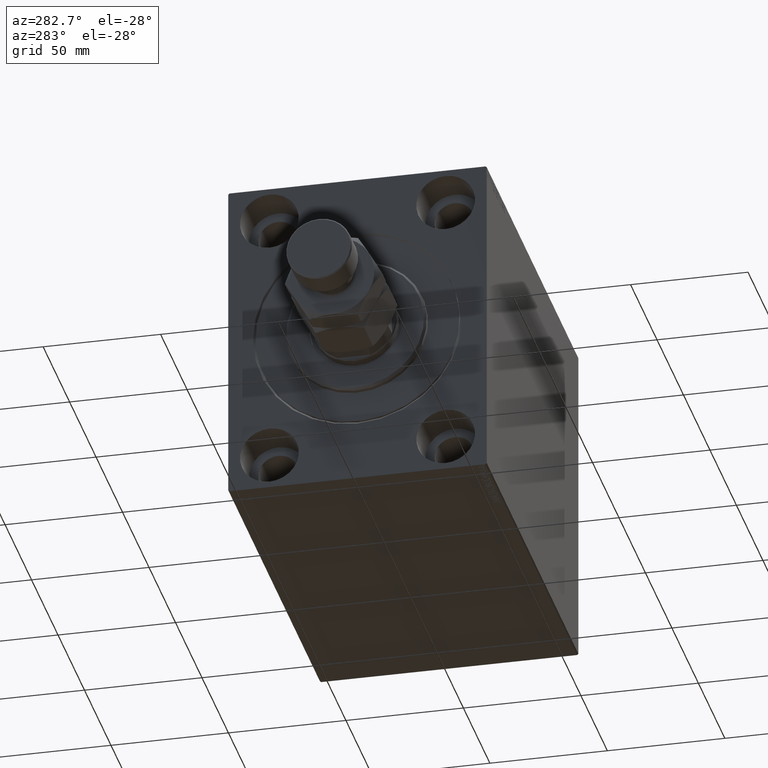
[diagram: clean part render]
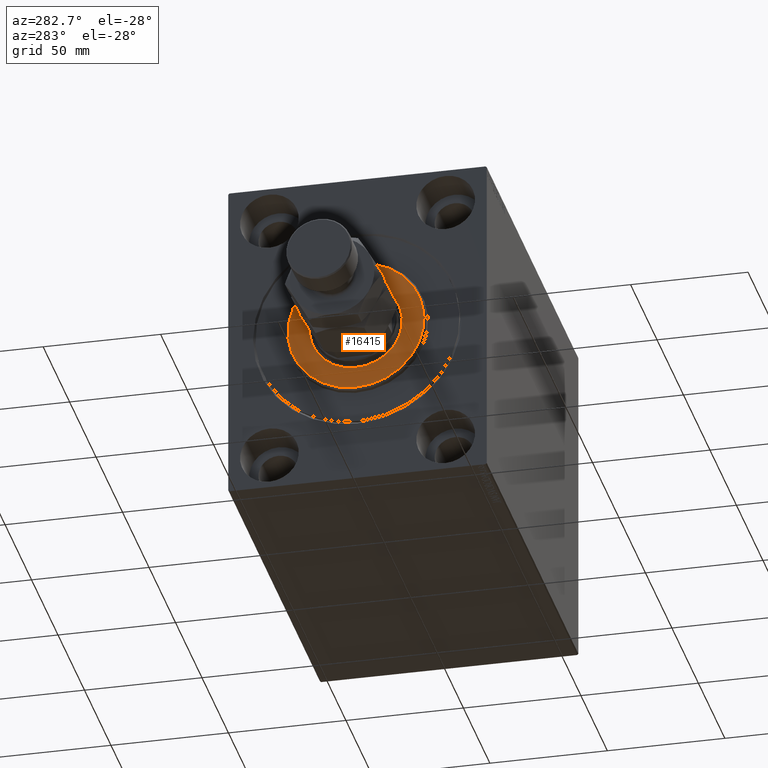
[diagram: same view with one face highlighted and labeled with its STEP entity id]
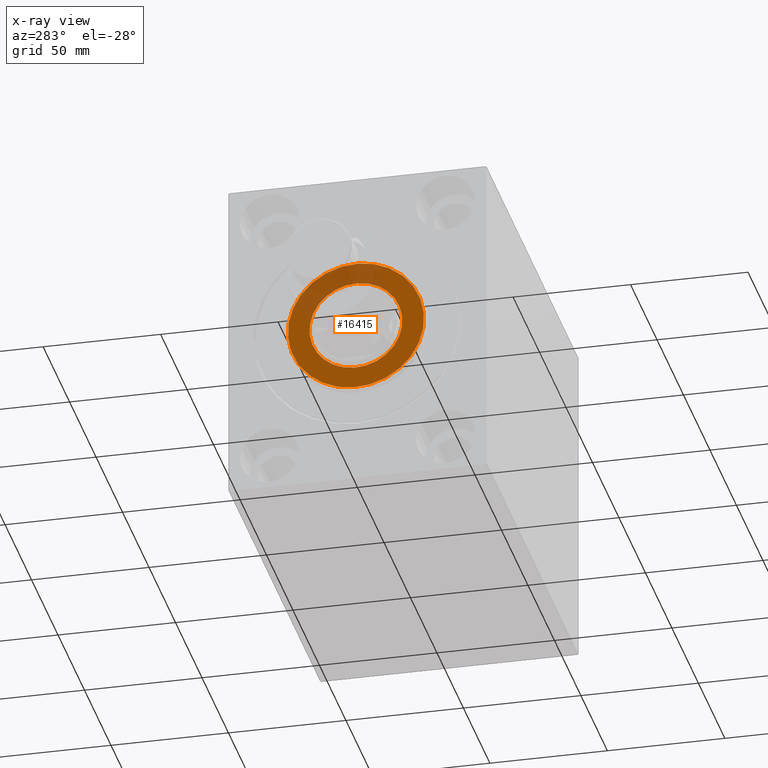
[diagram: x-ray of the same camera — body ghosted, the highlighted face saturated]
A machine part, auxiliary view. The second image highlights one B-rep face of the part: STEP entity #16415.
The next image is the same camera in x-ray: the body ghosted, the highlighted face saturated — about 28% of this face is hidden behind the body in this view.
In plain terms, the highlighted planar face has unit normal (-1, 0, 0).
Its self-contained STEP definition (entity closure, byte-faithful):
#310 = CARTESIAN_POINT ( 'NONE',  ( 3.000000000000000000, 3.612708057484691604E-15, -28.99999999999999289 ) ) ;
#545 = FACE_BOUND ( 'NONE', #963, .T. ) ;
#963 = EDGE_LOOP ( 'NONE', ( #29029, #23702 ) ) ;
#3753 = PLANE ( 'NONE',  #19979 ) ;
#4344 = CARTESIAN_POINT ( 'NONE',  ( 3.000000000000000000, 0.000000000000000000, 0.000000000000000000 ) ) ;
#4706 = ORIENTED_EDGE ( 'NONE', *, *, #39872, .T. ) ;
#6345 = AXIS2_PLACEMENT_3D ( 'NONE', #4344, #43029, #18157 ) ;
#8581 = CARTESIAN_POINT ( 'NONE',  ( 3.000000000000000000, 2.418677428316022331E-15, -19.75000000000000000 ) ) ;
#11640 = CARTESIAN_POINT ( 'NONE',  ( 3.000000000000000000, 0.000000000000000000, 19.75000000000000000 ) ) ;
#11980 = DIRECTION ( 'NONE',  ( 0.000000000000000000, 0.000000000000000000, -1.000000000000000000 ) ) ;
#12781 = AXIS2_PLACEMENT_3D ( 'NONE', #43959, #44180, #29902 ) ;
#13280 = EDGE_LOOP ( 'NONE', ( #4706, #19076 ) ) ;
#13443 = CIRCLE ( 'NONE', #37064, 19.75000000000000000 ) ;
#13582 = CARTESIAN_POINT ( 'NONE',  ( 3.000000000000000000, 0.000000000000000000, 0.000000000000000000 ) ) ;
#14354 = DIRECTION ( 'NONE',  ( 1.000000000000000000, -0.000000000000000000, 0.000000000000000000 ) ) ;
#14586 = CARTESIAN_POINT ( 'NONE',  ( 3.000000000000000000, 0.000000000000000000, 0.000000000000000000 ) ) ;
#16199 = VERTEX_POINT ( 'NONE', #11640 ) ;
#16415 = ADVANCED_FACE ( 'NONE', ( #35289, #545 ), #3753, .T. ) ;
#16955 = CARTESIAN_POINT ( 'NONE',  ( 3.000000000000000000, 0.000000000000000000, 28.99999999999999289 ) ) ;
#18157 = DIRECTION ( 'NONE',  ( 0.000000000000000000, 0.000000000000000000, -1.000000000000000000 ) ) ;
#19076 = ORIENTED_EDGE ( 'NONE', *, *, #27049, .T. ) ;
#19979 = AXIS2_PLACEMENT_3D ( 'NONE', #14586, #14354, #28392 ) ;
#23702 = ORIENTED_EDGE ( 'NONE', *, *, #32468, .T. ) ;
#23750 = EDGE_CURVE ( 'NONE', #16199, #28034, #13443, .T. ) ;
#27049 = EDGE_CURVE ( 'NONE', #30329, #36361, #43650, .T. ) ;
#27625 = DIRECTION ( 'NONE',  ( -1.000000000000000000, 0.000000000000000000, -0.000000000000000000 ) ) ;
#28034 = VERTEX_POINT ( 'NONE', #8581 ) ;
#28392 = DIRECTION ( 'NONE',  ( 0.000000000000000000, 0.000000000000000000, -1.000000000000000000 ) ) ;
#29029 = ORIENTED_EDGE ( 'NONE', *, *, #23750, .T. ) ;
#29902 = DIRECTION ( 'NONE',  ( 0.000000000000000000, 0.000000000000000000, -1.000000000000000000 ) ) ;
#30147 = CARTESIAN_POINT ( 'NONE',  ( 3.000000000000000000, 0.000000000000000000, 0.000000000000000000 ) ) ;
#30329 = VERTEX_POINT ( 'NONE', #310 ) ;
#32468 = EDGE_CURVE ( 'NONE', #28034, #16199, #43054, .T. ) ;
#33829 = DIRECTION ( 'NONE',  ( -1.000000000000000000, 0.000000000000000000, -0.000000000000000000 ) ) ;
#35289 = FACE_OUTER_BOUND ( 'NONE', #13280, .T. ) ;
#36361 = VERTEX_POINT ( 'NONE', #16955 ) ;
#37064 = AXIS2_PLACEMENT_3D ( 'NONE', #30147, #33829, #11980 ) ;
#39872 = EDGE_CURVE ( 'NONE', #36361, #30329, #41659, .T. ) ;
#40854 = AXIS2_PLACEMENT_3D ( 'NONE', #13582, #27625, #41687 ) ;
#41659 = CIRCLE ( 'NONE', #6345, 28.99999999999999289 ) ;
#41687 = DIRECTION ( 'NONE',  ( 0.000000000000000000, 0.000000000000000000, -1.000000000000000000 ) ) ;
#43029 = DIRECTION ( 'NONE',  ( 1.000000000000000000, -0.000000000000000000, 0.000000000000000000 ) ) ;
#43054 = CIRCLE ( 'NONE', #40854, 19.75000000000000000 ) ;
#43650 = CIRCLE ( 'NONE', #12781, 28.99999999999999289 ) ;
#43959 = CARTESIAN_POINT ( 'NONE',  ( 3.000000000000000000, 0.000000000000000000, 0.000000000000000000 ) ) ;
#44180 = DIRECTION ( 'NONE',  ( 1.000000000000000000, -0.000000000000000000, 0.000000000000000000 ) ) ;